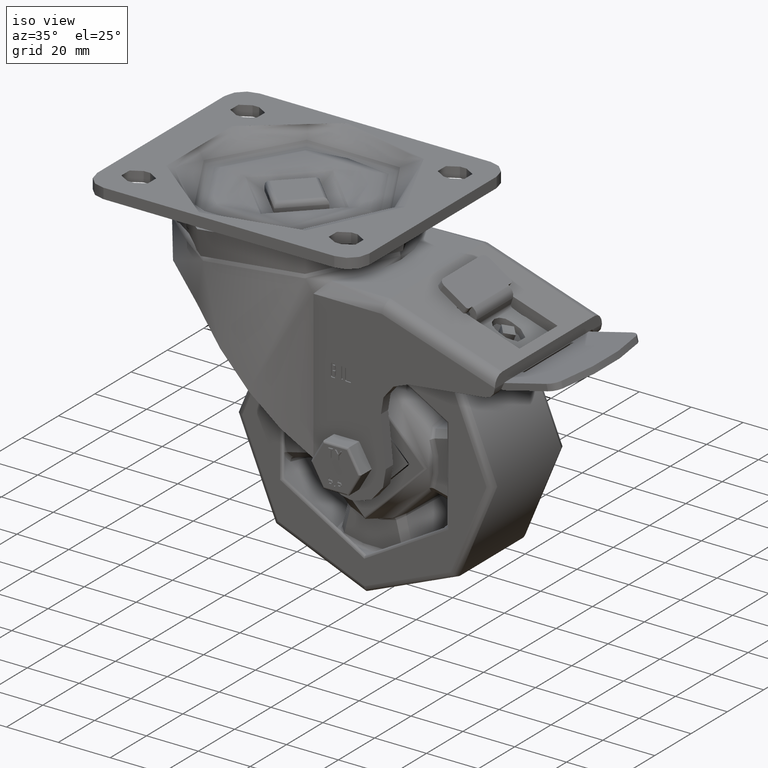
[diagram: clean part render]
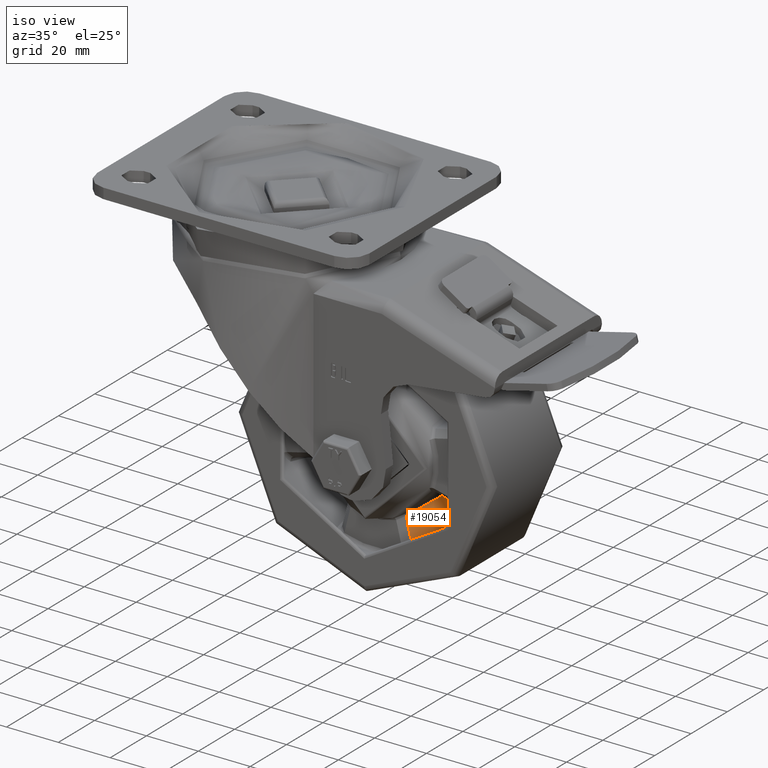
[diagram: same view with one face highlighted and labeled with its STEP entity id]
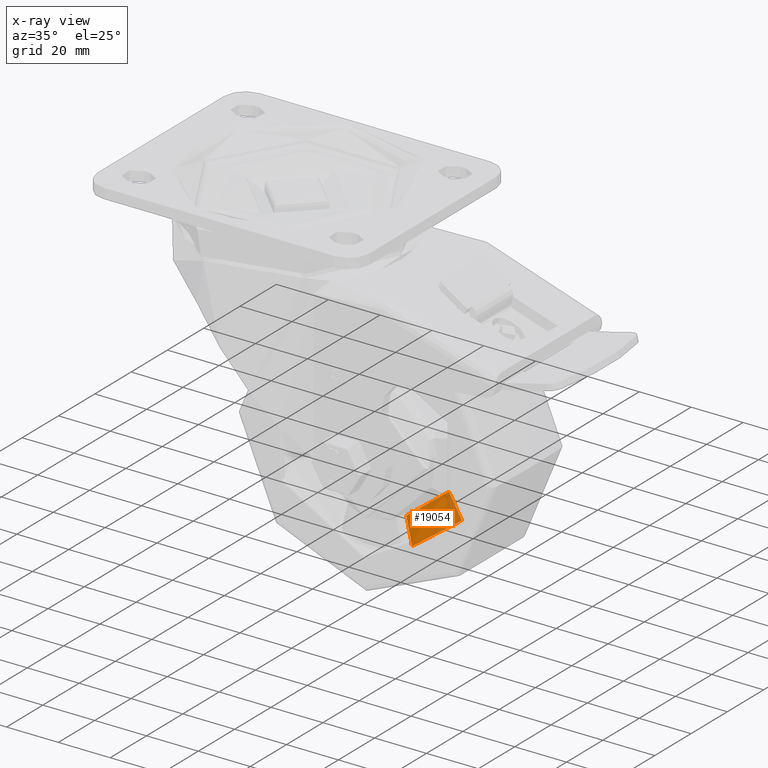
[diagram: x-ray of the same camera — body ghosted, the highlighted face saturated]
A machine part, iso view. The second image highlights one B-rep face of the part: STEP entity #19054.
The next image is the same camera in x-ray: the body ghosted, the highlighted face saturated — about 20% of this face is hidden behind the body in this view.
In plain terms, the highlighted face is a freeform B-spline surface patch.
Its self-contained STEP definition (entity closure, byte-faithful):
#432=B_SPLINE_SURFACE_WITH_KNOTS('',3,3,((#56521,#56522,#56523,#56524),
(#56525,#56526,#56527,#56528),(#56529,#56530,#56531,#56532),(#56533,#56534,
#56535,#56536)),.UNSPECIFIED.,.F.,.F.,.F.,(4,4),(4,4),(0.0428011481159679,
0.906073449082032),(-1.50308078470949E-15,0.878710552501142),
 .UNSPECIFIED.);
#771=B_SPLINE_CURVE_WITH_KNOTS('',3,(#44468,#44469,#44470,#44471,#44472,
#44473,#44474,#44475,#44476,#44477,#44478,#44479,#44480,#44481,#44482,#44483,
#44484),.UNSPECIFIED.,.F.,.F.,(4,2,2,2,1,2,2,2,4),(0.,0.00169466014231912,
0.0033379669469922,0.00436503369991288,0.0050069504204883,0.00564886714106373,
0.0066759338939844,0.00831924069865749,0.0100139004176239),
 .UNSPECIFIED.);
#785=B_SPLINE_CURVE_WITH_KNOTS('',3,(#46499,#46500,#46501,#46502,#46503,
#46504,#46505,#46506,#46507,#46508,#46509,#46510,#46511,#46512,#46513,#46514),
 .UNSPECIFIED.,.F.,.F.,(4,2,2,2,2,2,2,4),(6.46163066374986E-15,0.00456087057122094,
0.00898353294330771,0.0117476969258619,0.0134752994149583,0.0152029019040547,
0.017967065886609,0.0215459106587605),.UNSPECIFIED.);
#819=B_SPLINE_CURVE_WITH_KNOTS('',3,(#54583,#54584,#54585,#54586,#54587,
#54588,#54589,#54590,#54591,#54592,#54593,#54594,#54595,#54596,#54597,#54598),
 .UNSPECIFIED.,.F.,.F.,(4,2,2,2,2,2,2,4),(0.0012095059420566,0.00252192448348288,
0.0057584380256653,0.00778125898952932,0.00980407995339334,0.0130405934955758,
0.0182190151630676,0.0235592623465395),.UNSPECIFIED.);
#823=B_SPLINE_CURVE_WITH_KNOTS('',3,(#56509,#56510,#56511,#56512,#56513,
#56514,#56515,#56516,#56517,#56518,#56519,#56520),.UNSPECIFIED.,.F.,.F.,
(4,2,2,2,2,4),(-0.0115580758388723,-0.00932981066009416,-0.0061738624135336,
-0.00420139475943325,-0.0022289271053329,-0.00129005677676369),
 .UNSPECIFIED.);
#2705=FACE_OUTER_BOUND('',#3883,.T.);
#3883=EDGE_LOOP('',(#15594,#15595,#15596,#15597));
#8821=VERTEX_POINT('',#44437);
#8824=VERTEX_POINT('',#44466);
#8848=VERTEX_POINT('',#46497);
#8870=VERTEX_POINT('',#54582);
#11125=EDGE_CURVE('',#8824,#8821,#771,.T.);
#11178=EDGE_CURVE('',#8848,#8824,#785,.T.);
#11248=EDGE_CURVE('',#8821,#8870,#819,.T.);
#11258=EDGE_CURVE('',#8870,#8848,#823,.T.);
#15594=ORIENTED_EDGE('',*,*,#11125,.F.);
#15595=ORIENTED_EDGE('',*,*,#11178,.F.);
#15596=ORIENTED_EDGE('',*,*,#11258,.F.);
#15597=ORIENTED_EDGE('',*,*,#11248,.F.);
#19054=ADVANCED_FACE('',(#2705),#432,.T.);
#44437=CARTESIAN_POINT('',(17.3465288638545,8.9892546110101,-30.6518750843325));
#44466=CARTESIAN_POINT('',(12.4795404176498,8.84243925713685,-21.892728711056));
#44468=CARTESIAN_POINT('Ctrl Pts',(12.4795403992432,8.8424392605628,-21.8927287698647));
#44469=CARTESIAN_POINT('Ctrl Pts',(12.7523459349247,8.85090189812783,-22.387810764409));
#44470=CARTESIAN_POINT('Ctrl Pts',(13.025453162416,8.8593435737974,-22.8827255361206));
#44471=CARTESIAN_POINT('Ctrl Pts',(13.56398008448,8.87591983928316,-23.8572296950096));
#44472=CARTESIAN_POINT('Ctrl Pts',(13.8293819434561,8.88405598205546,-24.3368290225327));
#44473=CARTESIAN_POINT('Ctrl Pts',(14.2611113331522,8.89723016104711,-25.1159250126337));
#44474=CARTESIAN_POINT('Ctrl Pts',(14.4272695915715,8.90228584515199,-25.4155165244171));
#44475=CARTESIAN_POINT('Ctrl Pts',(14.6974516739973,8.91048123495927,-25.902254394526));
#44476=CARTESIAN_POINT('Ctrl Pts',(14.9053681350381,8.91677572005513,-26.2766208651422));
#44477=CARTESIAN_POINT('Ctrl Pts',(15.1134518906746,8.92304987064122,-26.6508930859813));
#44478=CARTESIAN_POINT('Ctrl Pts',(15.3840689144535,8.9311924022416,-27.1373859217064));
#44479=CARTESIAN_POINT('Ctrl Pts',(15.5507089482512,8.93618953845869,-27.436706014345));
#44480=CARTESIAN_POINT('Ctrl Pts',(15.9842473018753,8.94914401168686,-28.2147829012354));
#44481=CARTESIAN_POINT('Ctrl Pts',(16.2513101990295,8.95707848882014,-28.693446471689));
#44482=CARTESIAN_POINT('Ctrl Pts',(16.7943213230625,8.97311128652197,-29.6654243966058));
#44483=CARTESIAN_POINT('Ctrl Pts',(17.0702864145247,8.98120697644455,-30.1587291469323));
#44484=CARTESIAN_POINT('Ctrl Pts',(17.3465288786351,8.98925460250225,-30.6518750761918));
#46497=CARTESIAN_POINT('',(11.0509899366382,-12.6612424729813,-22.3705238236309));
#46499=CARTESIAN_POINT('Ctrl Pts',(11.0509899557614,-12.661242478886,-22.3705238187384));
#46500=CARTESIAN_POINT('Ctrl Pts',(11.1452859391821,-11.1432959545703,-22.343140409614));
#46501=CARTESIAN_POINT('Ctrl Pts',(11.2411624601012,-9.62547293118087,-22.31456369345));
#46502=CARTESIAN_POINT('Ctrl Pts',(11.4329229830142,-6.63608319953582,-22.2557181039183));
#46503=CARTESIAN_POINT('Ctrl Pts',(11.5287184896379,-5.16450860645052,-22.2255264396382));
#46504=CARTESIAN_POINT('Ctrl Pts',(11.686438116991,-2.77341349579,-22.1743452385572));
#46505=CARTESIAN_POINT('Ctrl Pts',(11.7475920756602,-1.85381283331702,-22.1541508880148));
#46506=CARTESIAN_POINT('Ctrl Pts',(11.8477064431122,-0.359546832633142,
-22.1204803060332));
#46507=CARTESIAN_POINT('Ctrl Pts',(11.8863895489677,0.215150266006651,-22.1073246713474));
#46508=CARTESIAN_POINT('Ctrl Pts',(11.9640907372823,1.36450410344398,-22.0805956462713));
#46509=CARTESIAN_POINT('Ctrl Pts',(12.0031088198389,1.93916088562448,-22.0670222523983));
#46510=CARTESIAN_POINT('Ctrl Pts',(12.1049632410887,3.43321614794136,-22.0311807303399));
#46511=CARTESIAN_POINT('Ctrl Pts',(12.1680442081677,4.35258317959116,-22.0085819830054));
#46512=CARTESIAN_POINT('Ctrl Pts',(12.3136099599469,6.4621643180942,-21.9554587017334));
#46513=CARTESIAN_POINT('Ctrl Pts',(12.3963346433798,7.65234366491851,-21.9245603327782));
#46514=CARTESIAN_POINT('Ctrl Pts',(12.479540510213,8.84243924834252,-21.8927286023499));
#54582=CARTESIAN_POINT('',(13.4671124292702,-12.9600046400154,-32.3503019851318));
#54583=CARTESIAN_POINT('Ctrl Pts',(17.3465286114358,8.98925462781585,-30.6518747379239));
#54584=CARTESIAN_POINT('Ctrl Pts',(17.2719965260022,8.55993740239165,-30.6901128008675));
#54585=CARTESIAN_POINT('Ctrl Pts',(17.1973066383256,8.13061424882574,-30.7280856728175));
#54586=CARTESIAN_POINT('Ctrl Pts',(16.9379228018305,6.6425199134675,-30.8587596304148));
#54587=CARTESIAN_POINT('Ctrl Pts',(16.7524923222222,5.58370624102122,-30.9500799923842));
#54588=CARTESIAN_POINT('Ctrl Pts',(16.4500577483885,3.86299806788484,-31.0956503908847));
#54589=CARTESIAN_POINT('Ctrl Pts',(16.3334700412431,3.2011545693377,-31.1509601378595));
#54590=CARTESIAN_POINT('Ctrl Pts',(16.0998598735798,1.87738697541129,-31.2601854750504));
#54591=CARTESIAN_POINT('Ctrl Pts',(15.9828374305235,1.21546287837521,-31.3141010615927));
#54592=CARTESIAN_POINT('Ctrl Pts',(15.6781430801326,-0.505663862830514,
-31.4524275605201));
#54593=CARTESIAN_POINT('Ctrl Pts',(15.490208860975,-1.56494558812658,-31.5357256728637));
#54594=CARTESIAN_POINT('Ctrl Pts',(15.0009866682499,-4.31950833598916,-31.7474159084402));
#54595=CARTESIAN_POINT('Ctrl Pts',(14.699345992101,-6.01504042939401,-31.8728715685804));
#54596=CARTESIAN_POINT('Ctrl Pts',(14.0871253793701,-9.46014534381422,-32.1176356393239));
#54597=CARTESIAN_POINT('Ctrl Pts',(13.7765626696363,-11.2097512414282,-32.2366293207704));
#54598=CARTESIAN_POINT('Ctrl Pts',(13.4671125599626,-12.9600046657928,-32.3503019440126));
#56509=CARTESIAN_POINT('Ctrl Pts',(13.467112090607,-12.9600042457381,-32.3503020772316));
#56510=CARTESIAN_POINT('Ctrl Pts',(13.2935313007053,-12.9389552335876,-31.6281038255214));
#56511=CARTESIAN_POINT('Ctrl Pts',(13.1197065184787,-12.9177546296356,-30.9059655884502));
#56512=CARTESIAN_POINT('Ctrl Pts',(12.6990726035415,-12.8662035986712,-29.1611964191718));
#56513=CARTESIAN_POINT('Ctrl Pts',(12.4520072405125,-12.8357193143953,-28.1386285117752));
#56514=CARTESIAN_POINT('Ctrl Pts',(12.0496536759763,-12.7858404013115,-26.4771702335429));
#56515=CARTESIAN_POINT('Ctrl Pts',(11.8946927126013,-12.7665741053609,-25.8381993721491));
#56516=CARTESIAN_POINT('Ctrl Pts',(11.58434156592,-12.7279070239285,-24.5603632243186));
#56517=CARTESIAN_POINT('Ctrl Pts',(11.4289513785928,-12.7085062460004,-23.921497938871));
#56518=CARTESIAN_POINT('Ctrl Pts',(11.1992746556219,-12.6797944163712,-22.9786200188922));
#56519=CARTESIAN_POINT('Ctrl Pts',(11.1251571962841,-12.6705234545194,-22.6745657967681));
#56520=CARTESIAN_POINT('Ctrl Pts',(11.0509898792335,-12.6612424552698,-22.3705238381144));
#56521=CARTESIAN_POINT('Ctrl Pts',(11.0509899557612,-12.6612424788908,-22.3705238187386));
#56522=CARTESIAN_POINT('Ctrl Pts',(11.4410829575899,-5.34079754776328,-21.9755922554749));
#56523=CARTESIAN_POINT('Ctrl Pts',(11.7999181600187,1.98150092636959,-21.5792799107233));
#56524=CARTESIAN_POINT('Ctrl Pts',(12.1352438848379,9.30573585898366,-21.2036068454964));
#56525=CARTESIAN_POINT('Ctrl Pts',(11.907535257403,-12.7684270482024,-25.8818524136534));
#56526=CARTESIAN_POINT('Ctrl Pts',(12.5928463611744,-5.44939541977153,-25.3652540514855));
#56527=CARTESIAN_POINT('Ctrl Pts',(13.2471581877491,1.87271255260986,-24.8472915567965));
#56528=CARTESIAN_POINT('Ctrl Pts',(13.8781584685781,9.19803354617582,-24.3497908628787));
#56529=CARTESIAN_POINT('Ctrl Pts',(12.7573580081627,-12.8742256408935,-29.3948345501894));
#56530=CARTESIAN_POINT('Ctrl Pts',(13.7378536439769,-5.5565504822109,-28.757202299819));
#56531=CARTESIAN_POINT('Ctrl Pts',(14.687865487359,1.76537500599991,-28.1182309994923));
#56532=CARTESIAN_POINT('Ctrl Pts',(15.6149650824057,9.09173793377718,-27.4993740984615));
#56533=CARTESIAN_POINT('Ctrl Pts',(13.6014017925117,-12.9762645271273,-32.9092381354663));
#56534=CARTESIAN_POINT('Ctrl Pts',(14.8770766837756,-5.65980217873121,-32.151110191999));
#56535=CARTESIAN_POINT('Ctrl Pts',(16.1229819550299,1.6619611085928,-31.3916744010504));
#56536=CARTESIAN_POINT('Ctrl Pts',(17.3465288794742,8.98925460752728,-30.6518750756845));